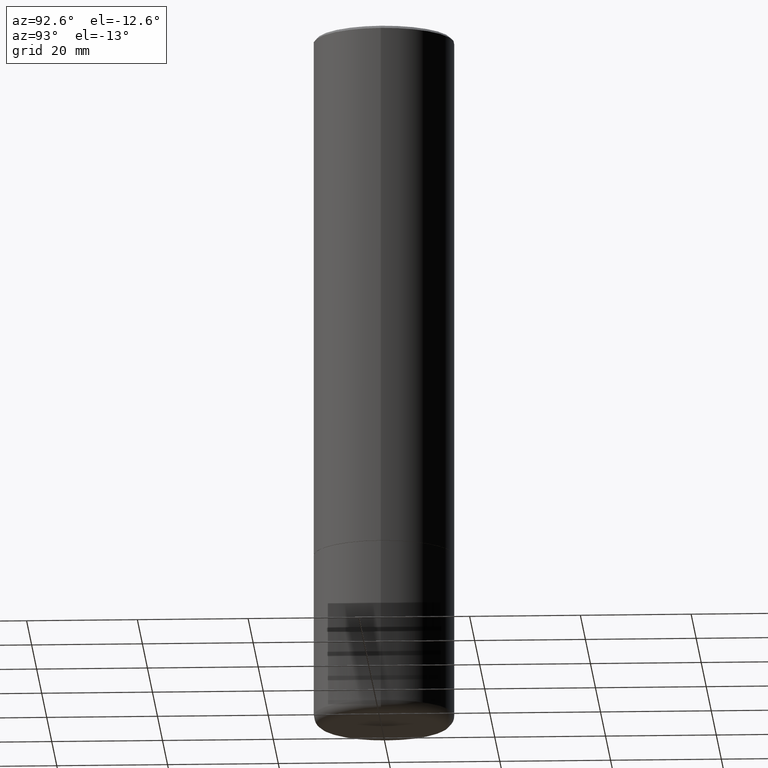
[diagram: clean part render]
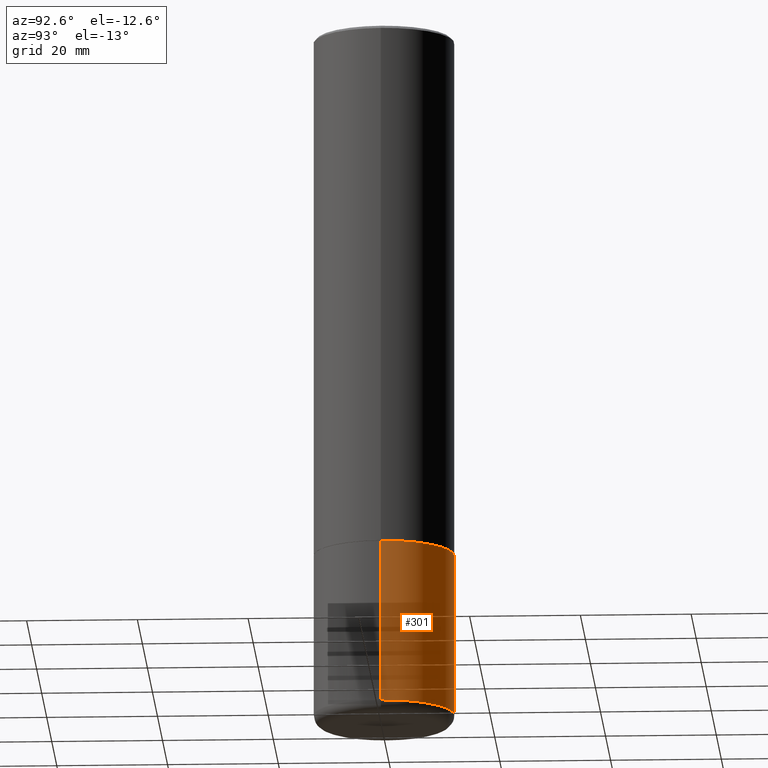
[diagram: same view with one face highlighted and labeled with its STEP entity id]
A machine part, auxiliary view. The second image highlights one B-rep face of the part: STEP entity #301.
In plain terms, the highlighted cylindrical surface (partial cylindrical patch) has radius 12.7 mm, axis along (-0, 0, 1).
Its self-contained STEP definition (entity closure, byte-faithful):
#11 = CARTESIAN_POINT ( 'NONE',  ( -0.4999999999999997224, 3.552713678800498957E-15, -2.459467545127451490E-29 ) ) ;
#27 = AXIS2_PLACEMENT_3D ( 'NONE', #322, #470, #136 ) ;
#31 = EDGE_CURVE ( 'NONE', #308, #450, #186, .T. ) ;
#53 = VERTEX_POINT ( 'NONE', #178 ) ;
#58 = CARTESIAN_POINT ( 'NONE',  ( -0.5000000000000001110, -1.156540650091130805E-14, -4.910003426924224534 ) ) ;
#86 = LINE ( 'NONE', #11, #413 ) ;
#99 = ORIENTED_EDGE ( 'NONE', *, *, #357, .T. ) ;
#119 = FACE_OUTER_BOUND ( 'NONE', #439, .T. ) ;
#129 = DIRECTION ( 'NONE',  ( -2.445468806185136877E-29, 3.491481338843145188E-15, 1.000000000000000000 ) ) ;
#136 = DIRECTION ( 'NONE',  ( 1.000000000000000000, -6.982962677686265133E-15, 0.000000000000000000 ) ) ;
#140 = EDGE_CURVE ( 'NONE', #53, #475, #281, .T. ) ;
#178 = CARTESIAN_POINT ( 'NONE',  ( 0.4999999999999994449, -1.658453635950492761E-14, -3.750000000000000000 ) ) ;
#186 = CIRCLE ( 'NONE', #27, 0.5000000000000001110 ) ;
#195 = ORIENTED_EDGE ( 'NONE', *, *, #140, .F. ) ;
#200 = AXIS2_PLACEMENT_3D ( 'NONE', #286, #207, #323 ) ;
#207 = DIRECTION ( 'NONE',  ( -2.445468806185136597E-29, 3.491481338843145583E-15, 1.000000000000000000 ) ) ;
#229 = DIRECTION ( 'NONE',  ( 1.000000000000000000, -6.982962677686266711E-15, 4.876176775795935793E-29 ) ) ;
#237 = DIRECTION ( 'NONE',  ( -2.445468806185136877E-29, 3.491481338843145188E-15, 1.000000000000000000 ) ) ;
#242 = CARTESIAN_POINT ( 'NONE',  ( 0.5000000000000001110, -2.063466667760495706E-14, -4.910003426924224534 ) ) ;
#255 = ORIENTED_EDGE ( 'NONE', *, *, #407, .F. ) ;
#268 = DIRECTION ( 'NONE',  ( -2.445468806185136597E-29, 3.491481338843145583E-15, 1.000000000000000000 ) ) ;
#278 = CARTESIAN_POINT ( 'NONE',  ( 0.000000000000000000, 0.000000000000000000, 0.000000000000000000 ) ) ;
#281 = CIRCLE ( 'NONE', #200, 0.4999999999999994449 ) ;
#286 = CARTESIAN_POINT ( 'NONE',  ( 9.170508023194262238E-29, -1.309305502066179741E-14, -3.750000000000000000 ) ) ;
#301 = ADVANCED_FACE ( 'NONE', ( #119 ), #418, .T. ) ;
#308 = VERTEX_POINT ( 'NONE', #242 ) ;
#322 = CARTESIAN_POINT ( 'NONE',  ( 1.200726021880531330E-28, -1.714318533876182370E-14, -4.910003426924224534 ) ) ;
#323 = DIRECTION ( 'NONE',  ( 1.000000000000000000, -6.982962677686266711E-15, 0.000000000000000000 ) ) ;
#343 = CARTESIAN_POINT ( 'NONE',  ( -0.4999999999999994449, -1.156540650091131278E-14, -3.750000000000000000 ) ) ;
#357 = EDGE_CURVE ( 'NONE', #450, #475, #86, .T. ) ;
#407 = EDGE_CURVE ( 'NONE', #308, #53, #452, .T. ) ;
#413 = VECTOR ( 'NONE', #237, 39.37007874015748143 ) ;
#418 = CYLINDRICAL_SURFACE ( 'NONE', #436, 0.4999999999999997224 ) ;
#419 = ORIENTED_EDGE ( 'NONE', *, *, #31, .T. ) ;
#436 = AXIS2_PLACEMENT_3D ( 'NONE', #278, #268, #229 ) ;
#439 = EDGE_LOOP ( 'NONE', ( #419, #99, #195, #255 ) ) ;
#450 = VERTEX_POINT ( 'NONE', #58 ) ;
#452 = LINE ( 'NONE', #461, #468 ) ;
#461 = CARTESIAN_POINT ( 'NONE',  ( 0.4999999999999997224, -3.491481338843131383E-15, 2.438088387897966495E-29 ) ) ;
#468 = VECTOR ( 'NONE', #129, 39.37007874015748143 ) ;
#470 = DIRECTION ( 'NONE',  ( -2.445468806185136597E-29, 3.491481338843145583E-15, 1.000000000000000000 ) ) ;
#475 = VERTEX_POINT ( 'NONE', #343 ) ;